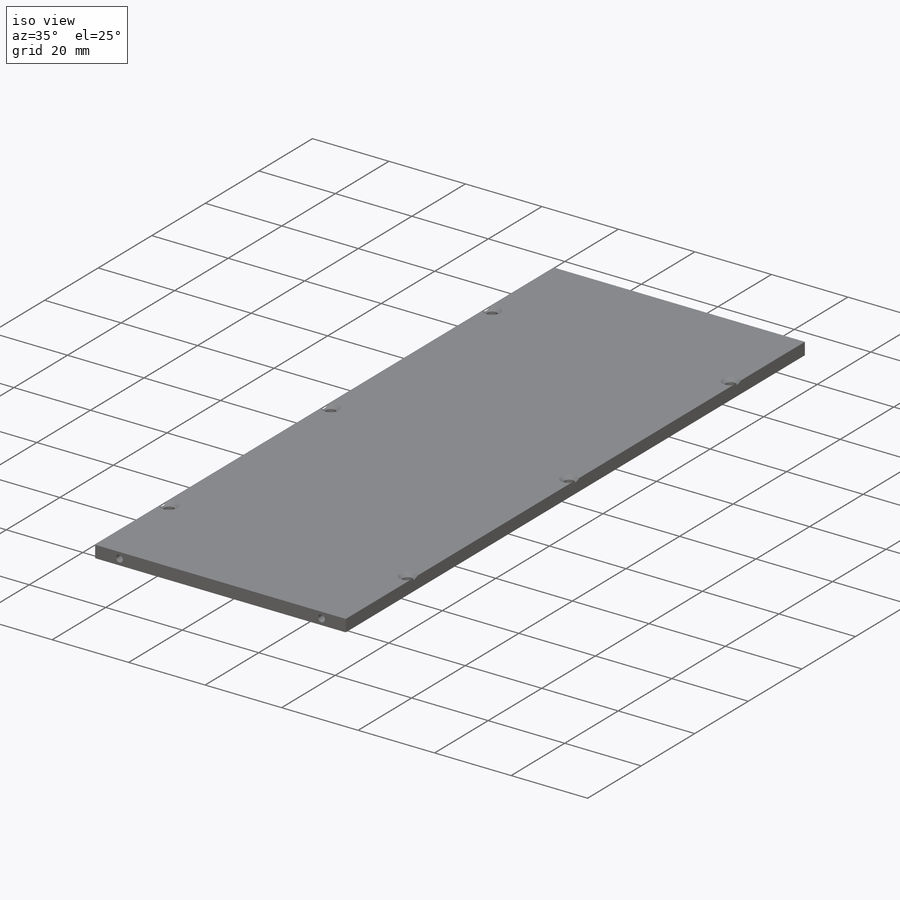
[diagram: iso view]
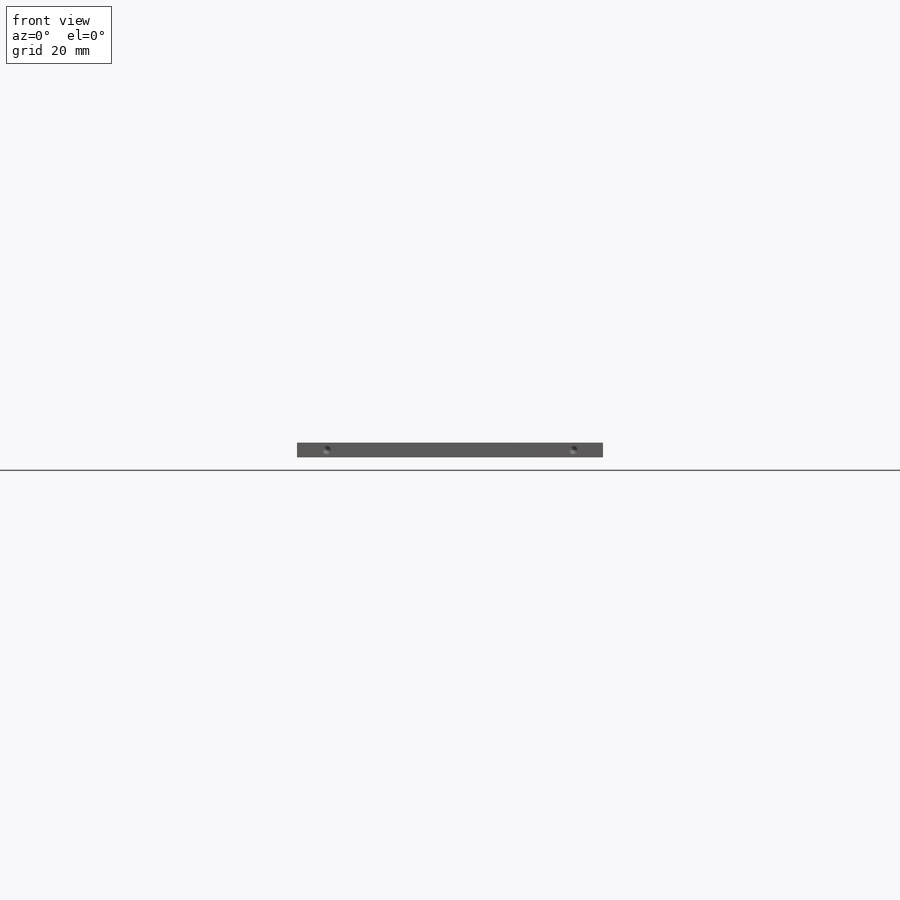
[diagram: front view]
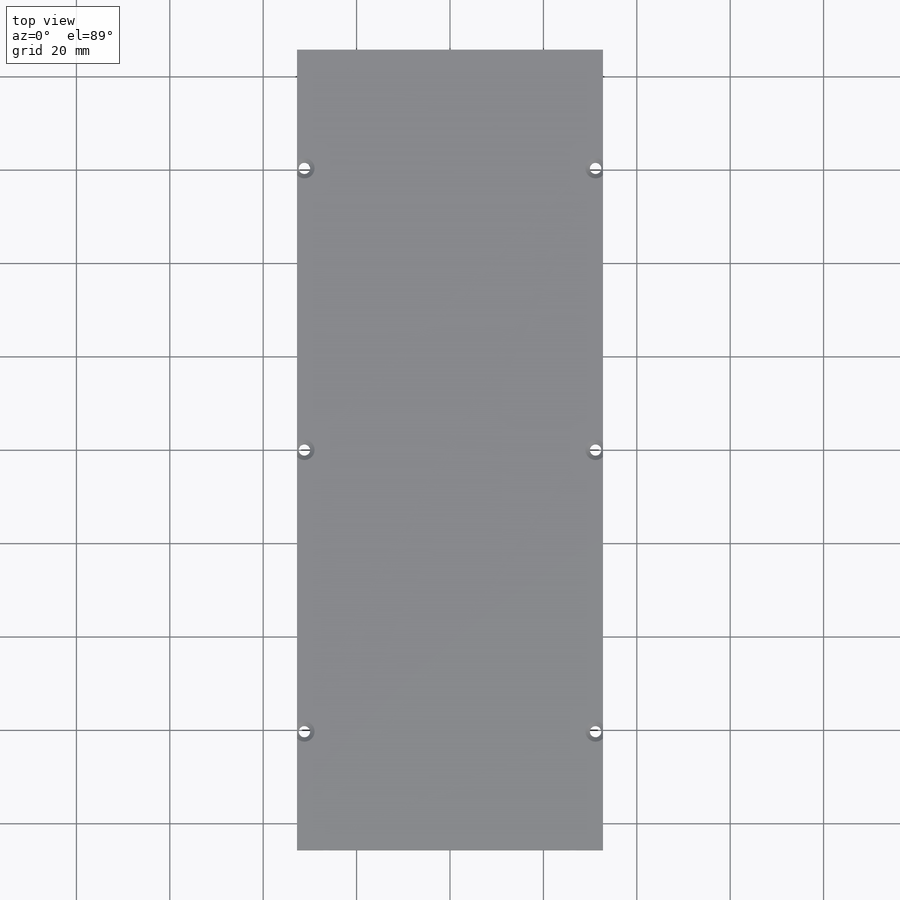
[diagram: top view]
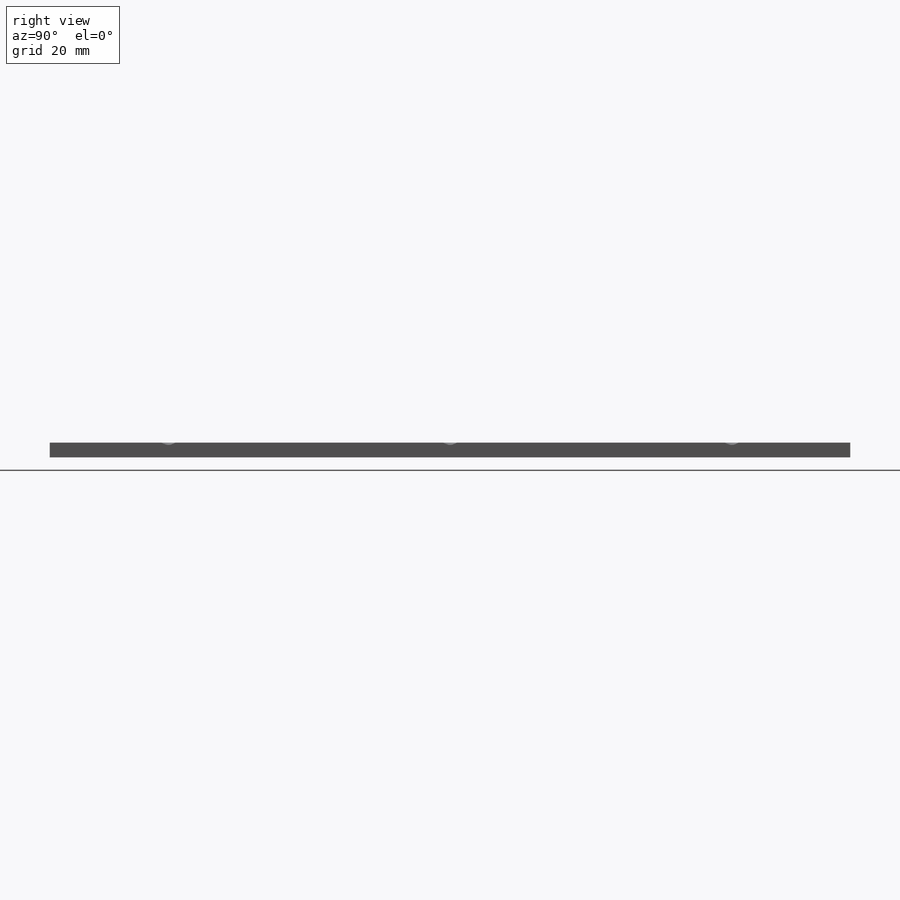
[diagram: right view]
SOLIDWORKS PART (.sldprt)
format: sldprt  version: not decoded by parser v0  size: 429,568 bytes
history: native  units: mm
features: sketch x7, hole x3, material x1, extrude x1 (+11 scaffold rows collapsed)
feature tree (23):
  scaffold x11  (default folders/planes/origin — collapsed)
  material  "Delrin"
  sketch  "Sketch1"  dims[D1=32.766mm D2=171.45mm D3=85.725mm D4=65.532mm]
  extrude  "Extrude1"  Depth=3.175mm
  hole  "Tap Drill for #2 Tap1"  Diameter=1.778mm Depth=6.35mm
  sketch  "3DSketch1"  dims[D1=1.5875mm D2=1.5875mm D3=6.35mm D4=6.35mm]
  sketch  "Sketch2"  dims[hole-wizard template sketch: 50 standard entries collapsed; hole parameters above]
  hole  "Tap Drill for #2 Tap2"  Diameter=1.778mm Depth=6.35mm
  sketch  "3DSketch2"  dims[D1=1.5875mm D2=1.5875mm D3=6.35mm D4=6.35mm]
  sketch  "Sketch3"  dims[hole-wizard template sketch: 50 standard entries collapsed; hole parameters above]
  hole  "CSK for #2 Flat Head Machine Screw (100)1"  Diameter=2.4384mm Depth=3.175mm
  sketch  "3DSketch3"  dims[D1=1.5875mm D2=1.5875mm D3=85.725mm D4=25.4mm D5=25.4mm]
  sketch  "Sketch4"  dims[hole-wizard template sketch: 59 standard entries collapsed; hole parameters above]
decode coverage: 11 of 11 modeling features carry decoded parameters
note: ~ marks probable driven/reference dimensions
note: suppression state not decoded; provenance and decode notes live in map.json
